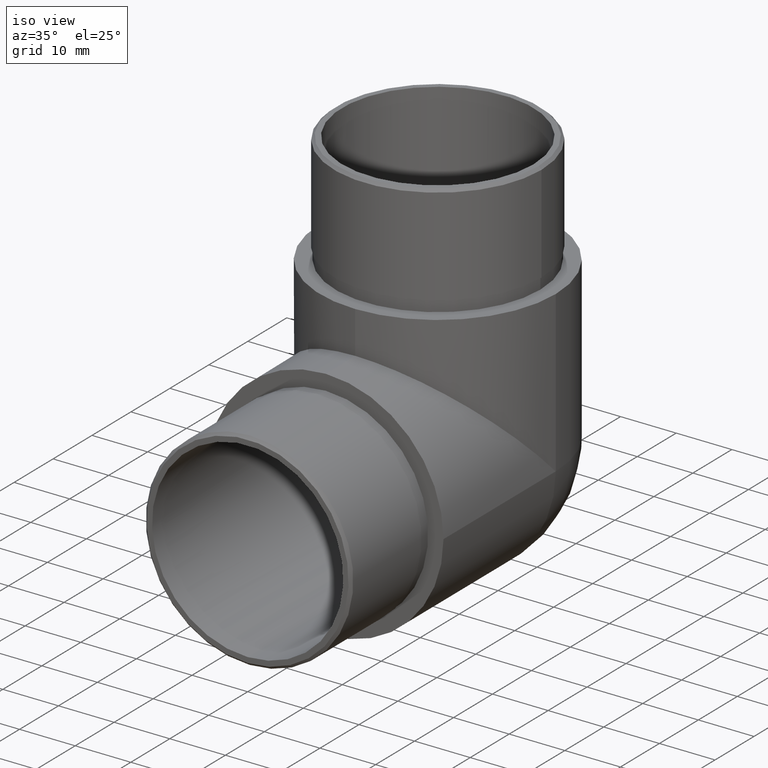
[diagram: clean part render]
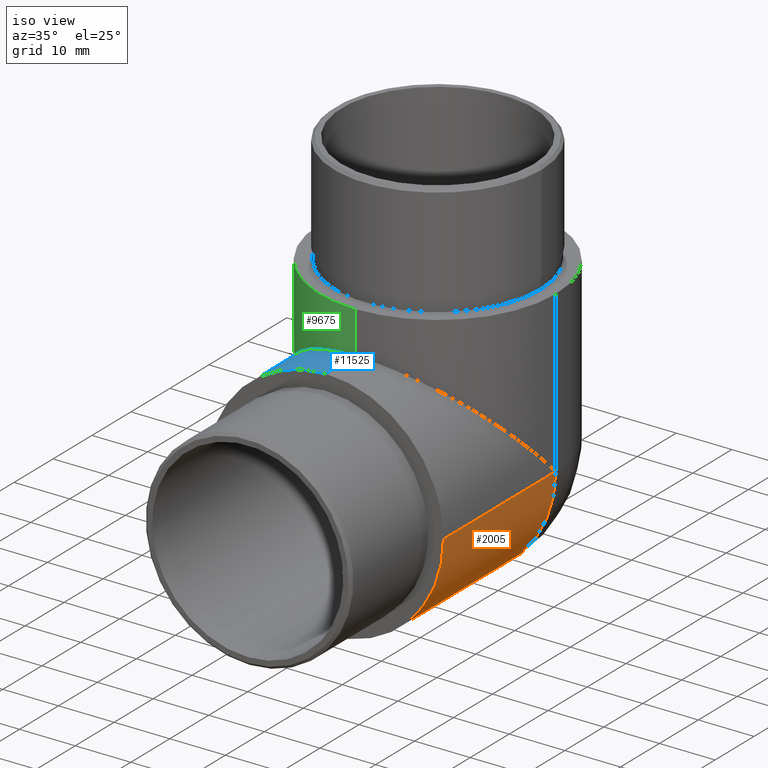
[diagram: same view with three faces highlighted in distinct colors, each labeled with its STEP entity id]
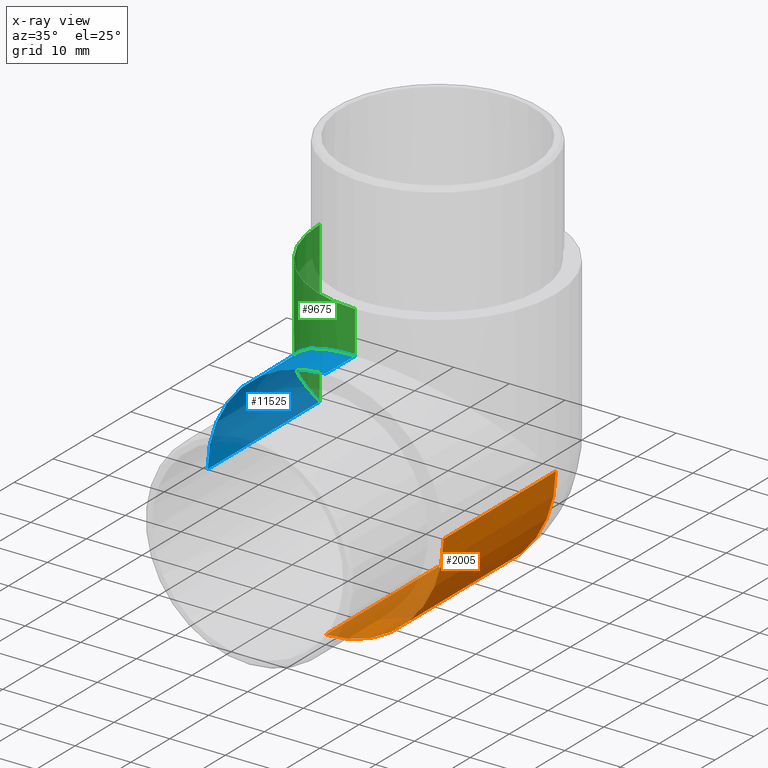
[diagram: x-ray of the same camera — body ghosted, the three highlighted faces saturated]
A machine part, iso view with three faces highlighted in distinct colors.
The next image is the same camera in x-ray (body ghosted, the three faces saturated) — at least one of them is partly hidden behind the body in this view.
Their STEP definitions:

[orange] entity #2005 — the highlighted cylindrical surface (partial cylindrical patch) has radius 21.2 mm, axis along (0, -1, 0).
#3 = DIRECTION ( 'NONE',  ( 0.0000000000000000000, 0.0000000000000000000, -1.000000000000000000 ) ) ;
#152 = EDGE_LOOP ( 'NONE', ( #6635, #7375, #3061, #4201 ) ) ;
#478 = VERTEX_POINT ( 'NONE', #10740 ) ;
#1099 = CYLINDRICAL_SURFACE ( 'NONE', #6327, 21.19999999999999900 ) ;
#1205 = VECTOR ( 'NONE', #2882, 1000.000000000000000 ) ;
#1480 = EDGE_CURVE ( 'NONE', #478, #6904, #4808, .T. ) ;
#1712 = DIRECTION ( 'NONE',  ( 0.0000000000000000000, 0.0000000000000000000, 1.000000000000000000 ) ) ;
#1737 = AXIS2_PLACEMENT_3D ( 'NONE', #11301, #5611, #1712 ) ;
#1907 = CARTESIAN_POINT ( 'NONE',  ( 3.469446951953614200E-015, 28.80000000000000800, 2.063529856563289800E-015 ) ) ;
#2005 = ADVANCED_FACE ( 'NONE', ( #3616 ), #1099, .T. ) ;
#2259 = DIRECTION ( 'NONE',  ( 0.0000000000000000000, 0.0000000000000000000, -1.000000000000000000 ) ) ;
#2279 = VECTOR ( 'NONE', #5289, 1000.000000000000000 ) ;
#2769 = EDGE_CURVE ( 'NONE', #6904, #8142, #7019, .T. ) ;
#2811 = DIRECTION ( 'NONE',  ( 0.0000000000000000000, -1.000000000000000000, 0.0000000000000000000 ) ) ;
#2882 = DIRECTION ( 'NONE',  ( -0.0000000000000000000, 1.000000000000000000, -0.0000000000000000000 ) ) ;
#3061 = ORIENTED_EDGE ( 'NONE', *, *, #12082, .F. ) ;
#3070 = CIRCLE ( 'NONE', #1737, 21.19999999999999900 ) ;
#3332 = VERTEX_POINT ( 'NONE', #11546 ) ;
#3616 = FACE_OUTER_BOUND ( 'NONE', #152, .T. ) ;
#4104 = EDGE_CURVE ( 'NONE', #478, #3332, #3070, .T. ) ;
#4201 = ORIENTED_EDGE ( 'NONE', *, *, #4104, .F. ) ;
#4808 = LINE ( 'NONE', #5244, #2279 ) ;
#5145 = AXIS2_PLACEMENT_3D ( 'NONE', #10078, #5783, #2259 ) ;
#5244 = CARTESIAN_POINT ( 'NONE',  ( 0.0000000000000000000, 88.76265504461922300, 2.063529856563289800E-015 ) ) ;
#5289 = DIRECTION ( 'NONE',  ( -0.0000000000000000000, 1.000000000000000000, -0.0000000000000000000 ) ) ;
#5611 = DIRECTION ( 'NONE',  ( -0.0000000000000000000, -1.000000000000000000, -0.0000000000000000000 ) ) ;
#5783 = DIRECTION ( 'NONE',  ( 0.0000000000000000000, -1.000000000000000000, 0.0000000000000000000 ) ) ;
#6327 = AXIS2_PLACEMENT_3D ( 'NONE', #10555, #2811, #3 ) ;
#6635 = ORIENTED_EDGE ( 'NONE', *, *, #1480, .T. ) ;
#6719 = CARTESIAN_POINT ( 'NONE',  ( 21.19999999999999600, 88.76265504461922300, 21.19999999999999900 ) ) ;
#6904 = VERTEX_POINT ( 'NONE', #1907 ) ;
#7019 = CIRCLE ( 'NONE', #5145, 21.19999999999999900 ) ;
#7375 = ORIENTED_EDGE ( 'NONE', *, *, #2769, .T. ) ;
#8142 = VERTEX_POINT ( 'NONE', #11297 ) ;
#10078 = CARTESIAN_POINT ( 'NONE',  ( -6.938893903907228400E-015, 28.80000000000000800, 21.20000000000000300 ) ) ;
#10555 = CARTESIAN_POINT ( 'NONE',  ( 3.469446951953614200E-015, 88.76265504461922300, 21.19999999999999900 ) ) ;
#10740 = CARTESIAN_POINT ( 'NONE',  ( 3.469446951953614200E-015, 0.0000000000000000000, 2.063529856563289800E-015 ) ) ;
#11297 = CARTESIAN_POINT ( 'NONE',  ( 21.19999999999999600, 28.80000000000001100, 21.19999999999999900 ) ) ;
#11301 = CARTESIAN_POINT ( 'NONE',  ( 3.469446951953614200E-015, 0.0000000000000000000, 21.19999999999999900 ) ) ;
#11546 = CARTESIAN_POINT ( 'NONE',  ( 21.19999999999999600, 0.0000000000000000000, 21.19999999999999900 ) ) ;
#11646 = LINE ( 'NONE', #6719, #1205 ) ;
#12082 = EDGE_CURVE ( 'NONE', #3332, #8142, #11646, .T. ) ;

[blue] entity #11525 — the highlighted cylindrical surface (partial cylindrical patch) has radius 21.2 mm, axis along (0, -1, 0).
#585 = ORIENTED_EDGE ( 'NONE', *, *, #6881, .F. ) ;
#638 = CYLINDRICAL_SURFACE ( 'NONE', #958, 21.19999999999999900 ) ;
#822 = CARTESIAN_POINT ( 'NONE',  ( 3.469446951953614200E-015, 88.76265504461922300, 21.19999999999999600 ) ) ;
#860 = EDGE_LOOP ( 'NONE', ( #5505, #585, #11320, #5714 ) ) ;
#958 = AXIS2_PLACEMENT_3D ( 'NONE', #822, #2661, #6501 ) ;
#1018 = DIRECTION ( 'NONE',  ( 0.0000000000000000000, -1.000000000000000000, 0.0000000000000000000 ) ) ;
#1045 = CARTESIAN_POINT ( 'NONE',  ( -12.41867247769038200, 7.600000000000012100, 42.39999999999998400 ) ) ;
#1345 = VERTEX_POINT ( 'NONE', #11163 ) ;
#1878 = VERTEX_POINT ( 'NONE', #10257 ) ;
#1947 = CARTESIAN_POINT ( 'NONE',  ( -1.734723475976807100E-015, 7.600000000000009400, 42.39999999999999100 ) ) ;
#1993 = DIRECTION ( 'NONE',  ( 0.0000000000000000000, 0.0000000000000000000, 1.000000000000000000 ) ) ;
#2595 = CARTESIAN_POINT ( 'NONE',  ( -21.19999999999999600, 0.0000000000000000000, 21.20000000000000300 ) ) ;
#2661 = DIRECTION ( 'NONE',  ( 0.0000000000000000000, -1.000000000000000000, 0.0000000000000000000 ) ) ;
#4819 = LINE ( 'NONE', #6722, #6449 ) ;
#5257 = VECTOR ( 'NONE', #6871, 1000.000000000000000 ) ;
#5505 = ORIENTED_EDGE ( 'NONE', *, *, #7517, .T. ) ;
#5559 = CIRCLE ( 'NONE', #11164, 21.19999999999999600 ) ;
#5714 = ORIENTED_EDGE ( 'NONE', *, *, #6939, .T. ) ;
#5809 = EDGE_CURVE ( 'NONE', #1345, #1878, #4819, .T. ) ;
#6449 = VECTOR ( 'NONE', #1018, 1000.000000000000000 ) ;
#6501 = DIRECTION ( 'NONE',  ( 0.0000000000000000000, 0.0000000000000000000, -1.000000000000000000 ) ) ;
#6722 = CARTESIAN_POINT ( 'NONE',  ( 3.469446951953614200E-015, 88.76265504461922300, 42.39999999999999100 ) ) ;
#6764 = CARTESIAN_POINT ( 'NONE',  ( 3.469446951953614200E-015, 0.0000000000000000000, 21.19999999999999600 ) ) ;
#6798 = VERTEX_POINT ( 'NONE', #10277 ) ;
#6871 = DIRECTION ( 'NONE',  ( -0.0000000000000000000, -1.000000000000000000, 0.0000000000000000000 ) ) ;
#6881 = EDGE_CURVE ( 'NONE', #1878, #8126, #5559, .T. ) ;
#6939 = EDGE_CURVE ( 'NONE', #1345, #6798, #9481, .T. ) ;
#7517 = EDGE_CURVE ( 'NONE', #6798, #8126, #11234, .T. ) ;
#7605 = DIRECTION ( 'NONE',  ( -0.0000000000000000000, -1.000000000000000000, -0.0000000000000000000 ) ) ;
#8126 = VERTEX_POINT ( 'NONE', #2595 ) ;
#8834 = CARTESIAN_POINT ( 'NONE',  ( -21.19999999999999600, 88.76265504461922300, 21.20000000000000300 ) ) ;
#9481 =( BOUNDED_CURVE ( )  B_SPLINE_CURVE ( 3, ( #1947, #1045, #11745, #11580 ),
 .UNSPECIFIED., .F., .T. ) 
 B_SPLINE_CURVE_WITH_KNOTS ( ( 4, 4 ),
 ( 2.454797371665293100E-016, 1.570796326794896800 ),
 .UNSPECIFIED. ) 
 CURVE ( )  GEOMETRIC_REPRESENTATION_ITEM ( )  RATIONAL_B_SPLINE_CURVE ( ( 1.000000000000000000, 0.8047378541243649400, 0.8047378541243649400, 1.000000000000000000 ) ) 
 REPRESENTATION_ITEM ( '' )  );
#10257 = CARTESIAN_POINT ( 'NONE',  ( 3.469446951953614200E-015, 0.0000000000000000000, 42.39999999999999100 ) ) ;
#10277 = CARTESIAN_POINT ( 'NONE',  ( -21.19999999999999600, 28.80000000000001100, 21.19999999999999200 ) ) ;
#11163 = CARTESIAN_POINT ( 'NONE',  ( -1.734723475976807100E-015, 7.600000000000009400, 42.39999999999999100 ) ) ;
#11164 = AXIS2_PLACEMENT_3D ( 'NONE', #6764, #7605, #1993 ) ;
#11234 = LINE ( 'NONE', #8834, #5257 ) ;
#11320 = ORIENTED_EDGE ( 'NONE', *, *, #5809, .F. ) ;
#11525 = ADVANCED_FACE ( 'NONE', ( #12107 ), #638, .T. ) ;
#11580 = CARTESIAN_POINT ( 'NONE',  ( -21.19999999999999600, 28.80000000000001100, 21.19999999999999200 ) ) ;
#11745 = CARTESIAN_POINT ( 'NONE',  ( -21.19999999999999200, 16.38132752230962600, 33.61867247769037400 ) ) ;
#12107 = FACE_OUTER_BOUND ( 'NONE', #860, .T. ) ;

[green] entity #9675 — the highlighted cylindrical surface (partial cylindrical patch) has radius 21.2 mm, axis along (0, 0, 1).
#250 = ORIENTED_EDGE ( 'NONE', *, *, #3291, .F. ) ;
#898 = ORIENTED_EDGE ( 'NONE', *, *, #3856, .T. ) ;
#1045 = CARTESIAN_POINT ( 'NONE',  ( -12.41867247769038200, 7.600000000000012100, 42.39999999999998400 ) ) ;
#1104 = DIRECTION ( 'NONE',  ( 0.0000000000000000000, 0.0000000000000000000, 1.000000000000000000 ) ) ;
#1345 = VERTEX_POINT ( 'NONE', #11163 ) ;
#1947 = CARTESIAN_POINT ( 'NONE',  ( -1.734723475976807100E-015, 7.600000000000009400, 42.39999999999999100 ) ) ;
#2178 = VECTOR ( 'NONE', #11471, 1000.000000000000000 ) ;
#2582 = VERTEX_POINT ( 'NONE', #5223 ) ;
#3291 = EDGE_CURVE ( 'NONE', #3946, #2582, #11429, .T. ) ;
#3856 = EDGE_CURVE ( 'NONE', #3946, #6798, #10054, .T. ) ;
#3946 = VERTEX_POINT ( 'NONE', #8079 ) ;
#4893 = CARTESIAN_POINT ( 'NONE',  ( 3.469446951953614200E-015, 28.80000000000000800, 1.818672477690387500 ) ) ;
#4988 = CARTESIAN_POINT ( 'NONE',  ( 3.469446951953614200E-015, 28.80000000000000800, 50.00000000000000000 ) ) ;
#5223 = CARTESIAN_POINT ( 'NONE',  ( -3.469446951953614200E-015, 7.600000000000009400, 50.00000000000000000 ) ) ;
#5772 = DIRECTION ( 'NONE',  ( 0.0000000000000000000, 0.0000000000000000000, 1.000000000000000000 ) ) ;
#6214 = ORIENTED_EDGE ( 'NONE', *, *, #6939, .F. ) ;
#6798 = VERTEX_POINT ( 'NONE', #10277 ) ;
#6939 = EDGE_CURVE ( 'NONE', #1345, #6798, #9481, .T. ) ;
#7066 = ORIENTED_EDGE ( 'NONE', *, *, #11994, .F. ) ;
#7387 = EDGE_LOOP ( 'NONE', ( #250, #898, #6214, #7066 ) ) ;
#7700 = DIRECTION ( 'NONE',  ( 1.000000000000000000, 0.0000000000000000000, 0.0000000000000000000 ) ) ;
#7740 = DIRECTION ( 'NONE',  ( 1.000000000000000000, 0.0000000000000000000, 0.0000000000000000000 ) ) ;
#8079 = CARTESIAN_POINT ( 'NONE',  ( -21.19999999999999600, 28.80000000000000800, 50.00000000000000000 ) ) ;
#8494 = VECTOR ( 'NONE', #12141, 1000.000000000000000 ) ;
#8582 = AXIS2_PLACEMENT_3D ( 'NONE', #4988, #1104, #7740 ) ;
#9194 = CARTESIAN_POINT ( 'NONE',  ( 3.469446951953614200E-015, 7.600000000000009400, 42.39999999999999100 ) ) ;
#9434 = CARTESIAN_POINT ( 'NONE',  ( -21.19999999999999600, 28.80000000000000800, 1.818672477690387500 ) ) ;
#9481 =( BOUNDED_CURVE ( )  B_SPLINE_CURVE ( 3, ( #1947, #1045, #11745, #11580 ),
 .UNSPECIFIED., .F., .T. ) 
 B_SPLINE_CURVE_WITH_KNOTS ( ( 4, 4 ),
 ( 2.454797371665293100E-016, 1.570796326794896800 ),
 .UNSPECIFIED. ) 
 CURVE ( )  GEOMETRIC_REPRESENTATION_ITEM ( )  RATIONAL_B_SPLINE_CURVE ( ( 1.000000000000000000, 0.8047378541243649400, 0.8047378541243649400, 1.000000000000000000 ) ) 
 REPRESENTATION_ITEM ( '' )  );
#9675 = ADVANCED_FACE ( 'NONE', ( #12100 ), #9807, .T. ) ;
#9805 = LINE ( 'NONE', #9194, #8494 ) ;
#9807 = CYLINDRICAL_SURFACE ( 'NONE', #11478, 21.19999999999999900 ) ;
#10054 = LINE ( 'NONE', #9434, #2178 ) ;
#10277 = CARTESIAN_POINT ( 'NONE',  ( -21.19999999999999600, 28.80000000000001100, 21.19999999999999200 ) ) ;
#11163 = CARTESIAN_POINT ( 'NONE',  ( -1.734723475976807100E-015, 7.600000000000009400, 42.39999999999999100 ) ) ;
#11429 = CIRCLE ( 'NONE', #8582, 21.19999999999999900 ) ;
#11471 = DIRECTION ( 'NONE',  ( -0.0000000000000000000, -0.0000000000000000000, -1.000000000000000000 ) ) ;
#11478 = AXIS2_PLACEMENT_3D ( 'NONE', #4893, #5772, #7700 ) ;
#11580 = CARTESIAN_POINT ( 'NONE',  ( -21.19999999999999600, 28.80000000000001100, 21.19999999999999200 ) ) ;
#11745 = CARTESIAN_POINT ( 'NONE',  ( -21.19999999999999200, 16.38132752230962600, 33.61867247769037400 ) ) ;
#11994 = EDGE_CURVE ( 'NONE', #2582, #1345, #9805, .T. ) ;
#12100 = FACE_OUTER_BOUND ( 'NONE', #7387, .T. ) ;
#12141 = DIRECTION ( 'NONE',  ( -0.0000000000000000000, -0.0000000000000000000, -1.000000000000000000 ) ) ;